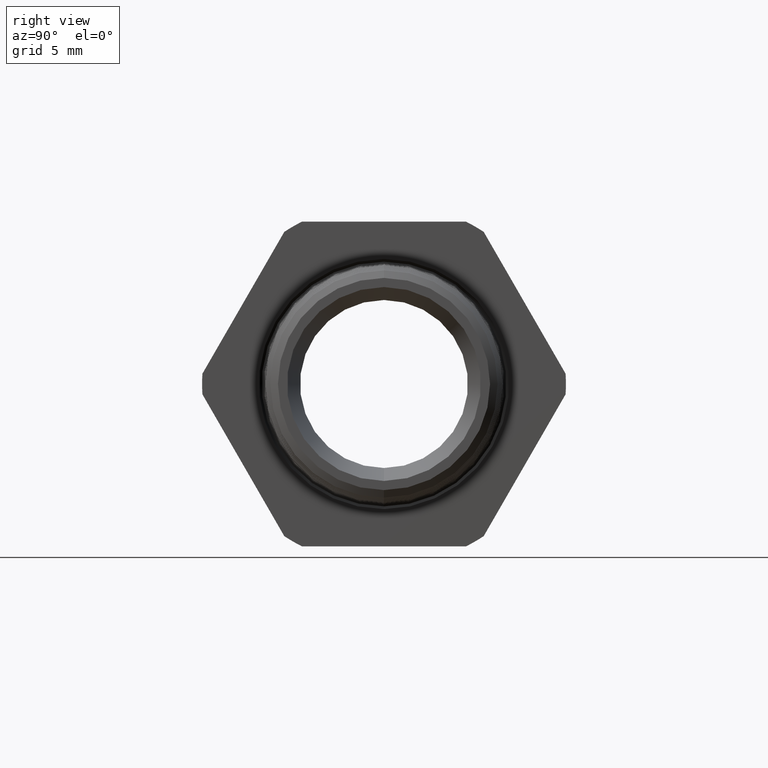
[diagram: clean part render]
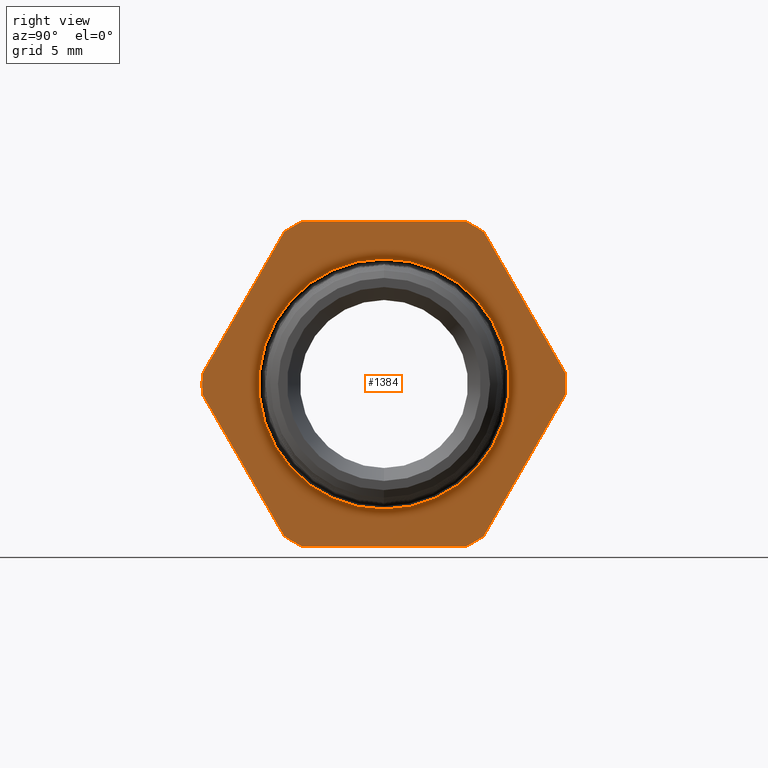
[diagram: same view with one face highlighted and labeled with its STEP entity id]
A machine part, right view. The second image highlights one B-rep face of the part: STEP entity #1384.
In plain terms, the highlighted planar face has unit normal (-1, 0, 0).
Its self-contained STEP definition (entity closure, byte-faithful):
#318 = EDGE_CURVE ( 'NONE', #3675, #3634, #1592, .T. ) ;
#1365 = ORIENTED_EDGE ( 'NONE', *, *, #1369, .T. ) ;
#1367 = EDGE_LOOP ( 'NONE', ( #1421, #1448 ) ) ;
#1368 = EDGE_CURVE ( 'NONE', #1417, #1443, #2674, .T. ) ;
#1369 = EDGE_CURVE ( 'NONE', #1445, #1375, #2670, .T. ) ;
#1370 = EDGE_CURVE ( 'NONE', #1374, #1378, #2666, .T. ) ;
#1371 = ORIENTED_EDGE ( 'NONE', *, *, #1373, .F. ) ;
#1372 = VERTEX_POINT ( 'NONE', #2662 ) ;
#1373 = EDGE_CURVE ( 'NONE', #1372, #1378, #2661, .T. ) ;
#1374 = VERTEX_POINT ( 'NONE', #2656 ) ;
#1375 = VERTEX_POINT ( 'NONE', #2655 ) ;
#1377 = ORIENTED_EDGE ( 'NONE', *, *, #3657, .T. ) ;
#1378 = VERTEX_POINT ( 'NONE', #2712 ) ;
#1381 = ORIENTED_EDGE ( 'NONE', *, *, #1370, .T. ) ;
#1382 = ORIENTED_EDGE ( 'NONE', *, *, #1434, .F. ) ;
#1383 = VERTEX_POINT ( 'NONE', #2707 ) ;
#1384 = ADVANCED_FACE ( 'NONE', ( #2706, #2705 ), #2704, .F. ) ;
#1385 = ORIENTED_EDGE ( 'NONE', *, *, #1368, .T. ) ;
#1386 = EDGE_LOOP ( 'NONE', ( #1381, #1371, #1377, #3660, #3627, #3648, #1408, #1382, #1385, #1458, #1365, #1425 ) ) ;
#1404 = EDGE_CURVE ( 'NONE', #1407, #3651, #2737, .T. ) ;
#1407 = VERTEX_POINT ( 'NONE', #2732 ) ;
#1408 = ORIENTED_EDGE ( 'NONE', *, *, #1422, .T. ) ;
#1417 = VERTEX_POINT ( 'NONE', #2774 ) ;
#1421 = ORIENTED_EDGE ( 'NONE', *, *, #1457, .F. ) ;
#1422 = EDGE_CURVE ( 'NONE', #1407, #1383, #2766, .T. ) ;
#1425 = ORIENTED_EDGE ( 'NONE', *, *, #1427, .F. ) ;
#1427 = EDGE_CURVE ( 'NONE', #1374, #1375, #2762, .T. ) ;
#1434 = EDGE_CURVE ( 'NONE', #1417, #1383, #2809, .T. ) ;
#1443 = VERTEX_POINT ( 'NONE', #2788 ) ;
#1445 = VERTEX_POINT ( 'NONE', #2787 ) ;
#1448 = ORIENTED_EDGE ( 'NONE', *, *, #318, .F. ) ;
#1455 = EDGE_CURVE ( 'NONE', #1445, #1443, #2827, .T. ) ;
#1457 = EDGE_CURVE ( 'NONE', #3634, #3675, #2822, .T. ) ;
#1458 = ORIENTED_EDGE ( 'NONE', *, *, #1455, .F. ) ;
#1588 = DIRECTION ( 'NONE',  ( 0.0000000000000000000, 0.0000000000000000000, 1.000000000000000000 ) ) ;
#1589 = DIRECTION ( 'NONE',  ( 1.000000000000000000, 0.0000000000000000000, 0.0000000000000000000 ) ) ;
#1590 = CARTESIAN_POINT ( 'NONE',  ( 0.0000000000000000000, 0.0000000000000000000, 0.0000000000000000000 ) ) ;
#1591 = AXIS2_PLACEMENT_3D ( 'NONE', #1590, #1589, #1588 ) ;
#1592 = CIRCLE ( 'NONE', #1591, 0.3349999999999998500 ) ;
#2655 = CARTESIAN_POINT ( 'NONE',  ( 0.0000000000000000000, -0.4864238764986216800, 0.02748913188977839700 ) ) ;
#2656 = CARTESIAN_POINT ( 'NONE',  ( 0.0000000000000000000, -0.4864238764986216800, -0.02748913188977887900 ) ) ;
#2657 = DIRECTION ( 'NONE',  ( 0.0000000000000000000, 0.0000000000000000000, 1.000000000000000000 ) ) ;
#2658 = DIRECTION ( 'NONE',  ( -1.000000000000000000, 0.0000000000000000000, 0.0000000000000000000 ) ) ;
#2659 = CARTESIAN_POINT ( 'NONE',  ( 0.0000000000000000000, 0.0000000000000000000, 0.0000000000000000000 ) ) ;
#2660 = AXIS2_PLACEMENT_3D ( 'NONE', #2659, #2658, #2657 ) ;
#2661 = CIRCLE ( 'NONE', #2660, 0.4872000000000000200 ) ;
#2662 = CARTESIAN_POINT ( 'NONE',  ( 0.0000000000000000000, -0.2194056517047815700, -0.4350000000000000000 ) ) ;
#2663 = DIRECTION ( 'NONE',  ( 0.0000000000000000000, 0.5000000000000003300, -0.8660254037844384900 ) ) ;
#2664 = VECTOR ( 'NONE', #2663, 39.37007874015748900 ) ;
#2665 = CARTESIAN_POINT ( 'NONE',  ( 0.0000000000000000000, -0.4864238764986216200, -0.02748913188977887900 ) ) ;
#2666 = LINE ( 'NONE', #2665, #2664 ) ;
#2667 = DIRECTION ( 'NONE',  ( 0.0000000000000000000, -0.5000000000000000000, -0.8660254037844386000 ) ) ;
#2668 = VECTOR ( 'NONE', #2667, 39.37007874015748900 ) ;
#2669 = CARTESIAN_POINT ( 'NONE',  ( 0.0000000000000000000, -0.2670182247938398500, 0.4075108681102214700 ) ) ;
#2670 = LINE ( 'NONE', #2669, #2668 ) ;
#2671 = DIRECTION ( 'NONE',  ( 0.0000000000000000000, -1.000000000000000000, 0.0000000000000000000 ) ) ;
#2672 = VECTOR ( 'NONE', #2671, 39.37007874015748100 ) ;
#2673 = CARTESIAN_POINT ( 'NONE',  ( 0.0000000000000000000, 0.2194056517047817700, 0.4350000000000000000 ) ) ;
#2674 = LINE ( 'NONE', #2673, #2672 ) ;
#2700 = DIRECTION ( 'NONE',  ( 0.0000000000000000000, 0.0000000000000000000, 1.000000000000000000 ) ) ;
#2701 = DIRECTION ( 'NONE',  ( -1.000000000000000000, 0.0000000000000000000, 0.0000000000000000000 ) ) ;
#2702 = CARTESIAN_POINT ( 'NONE',  ( 0.0000000000000000000, 0.4872000000000000200, 0.0000000000000000000 ) ) ;
#2703 = AXIS2_PLACEMENT_3D ( 'NONE', #2702, #2701, #2700 ) ;
#2704 = PLANE ( 'NONE',  #2703 ) ;
#2705 = FACE_BOUND ( 'NONE', #1367, .T. ) ;
#2706 = FACE_OUTER_BOUND ( 'NONE', #1386, .T. ) ;
#2707 = CARTESIAN_POINT ( 'NONE',  ( 0.0000000000000000000, 0.2670182247938398000, 0.4075108681102215800 ) ) ;
#2712 = CARTESIAN_POINT ( 'NONE',  ( 0.0000000000000000000, -0.2670182247938399600, -0.4075108681102215200 ) ) ;
#2732 = CARTESIAN_POINT ( 'NONE',  ( 0.0000000000000000000, 0.4864238764986217300, 0.02748913188977831700 ) ) ;
#2733 = DIRECTION ( 'NONE',  ( 0.0000000000000000000, 0.0000000000000000000, 1.000000000000000000 ) ) ;
#2734 = DIRECTION ( 'NONE',  ( -1.000000000000000000, 0.0000000000000000000, 0.0000000000000000000 ) ) ;
#2735 = CARTESIAN_POINT ( 'NONE',  ( 0.0000000000000000000, 0.0000000000000000000, 0.0000000000000000000 ) ) ;
#2736 = AXIS2_PLACEMENT_3D ( 'NONE', #2735, #2734, #2733 ) ;
#2737 = CIRCLE ( 'NONE', #2736, 0.4872000000000000200 ) ;
#2758 = DIRECTION ( 'NONE',  ( 0.0000000000000000000, 0.0000000000000000000, 1.000000000000000000 ) ) ;
#2759 = DIRECTION ( 'NONE',  ( -1.000000000000000000, 0.0000000000000000000, 0.0000000000000000000 ) ) ;
#2760 = CARTESIAN_POINT ( 'NONE',  ( 0.0000000000000000000, 0.0000000000000000000, 0.0000000000000000000 ) ) ;
#2761 = AXIS2_PLACEMENT_3D ( 'NONE', #2760, #2759, #2758 ) ;
#2762 = CIRCLE ( 'NONE', #2761, 0.4872000000000000200 ) ;
#2763 = DIRECTION ( 'NONE',  ( 0.0000000000000000000, -0.5000000000000001100, 0.8660254037844386000 ) ) ;
#2764 = VECTOR ( 'NONE', #2763, 39.37007874015748100 ) ;
#2765 = CARTESIAN_POINT ( 'NONE',  ( 0.0000000000000000000, 0.4864238764986217300, 0.02748913188977833100 ) ) ;
#2766 = LINE ( 'NONE', #2765, #2764 ) ;
#2774 = CARTESIAN_POINT ( 'NONE',  ( 0.0000000000000000000, 0.2194056517047817700, 0.4350000000000000000 ) ) ;
#2787 = CARTESIAN_POINT ( 'NONE',  ( 0.0000000000000000000, -0.2670182247938398000, 0.4075108681102215200 ) ) ;
#2788 = CARTESIAN_POINT ( 'NONE',  ( 0.0000000000000000000, -0.2194056517047817700, 0.4350000000000000000 ) ) ;
#2805 = DIRECTION ( 'NONE',  ( 0.0000000000000000000, 0.0000000000000000000, 1.000000000000000000 ) ) ;
#2806 = DIRECTION ( 'NONE',  ( -1.000000000000000000, 0.0000000000000000000, 0.0000000000000000000 ) ) ;
#2807 = CARTESIAN_POINT ( 'NONE',  ( 0.0000000000000000000, 0.0000000000000000000, 0.0000000000000000000 ) ) ;
#2808 = AXIS2_PLACEMENT_3D ( 'NONE', #2807, #2806, #2805 ) ;
#2809 = CIRCLE ( 'NONE', #2808, 0.4872000000000000200 ) ;
#2818 = DIRECTION ( 'NONE',  ( 0.0000000000000000000, 0.0000000000000000000, 1.000000000000000000 ) ) ;
#2819 = DIRECTION ( 'NONE',  ( 1.000000000000000000, 0.0000000000000000000, 0.0000000000000000000 ) ) ;
#2820 = CARTESIAN_POINT ( 'NONE',  ( 0.0000000000000000000, 0.0000000000000000000, 0.0000000000000000000 ) ) ;
#2821 = AXIS2_PLACEMENT_3D ( 'NONE', #2820, #2819, #2818 ) ;
#2822 = CIRCLE ( 'NONE', #2821, 0.3349999999999998500 ) ;
#2823 = DIRECTION ( 'NONE',  ( 0.0000000000000000000, 0.0000000000000000000, 1.000000000000000000 ) ) ;
#2824 = DIRECTION ( 'NONE',  ( -1.000000000000000000, 0.0000000000000000000, 0.0000000000000000000 ) ) ;
#2825 = CARTESIAN_POINT ( 'NONE',  ( 0.0000000000000000000, 0.0000000000000000000, 0.0000000000000000000 ) ) ;
#2826 = AXIS2_PLACEMENT_3D ( 'NONE', #2825, #2824, #2823 ) ;
#2827 = CIRCLE ( 'NONE', #2826, 0.4872000000000000200 ) ;
#3153 = CARTESIAN_POINT ( 'NONE',  ( 0.0000000000000000000, 0.2670182247938399100, -0.4075108681102214700 ) ) ;
#3189 = CARTESIAN_POINT ( 'NONE',  ( 0.0000000000000000000, 0.4864238764986216800, -0.02748913188977849700 ) ) ;
#3202 = CARTESIAN_POINT ( 'NONE',  ( 0.0000000000000000000, 0.0000000000000000000, -0.3349999999999998500 ) ) ;
#3220 = DIRECTION ( 'NONE',  ( 0.0000000000000000000, 0.0000000000000000000, 1.000000000000000000 ) ) ;
#3221 = DIRECTION ( 'NONE',  ( -1.000000000000000000, 0.0000000000000000000, 0.0000000000000000000 ) ) ;
#3222 = CARTESIAN_POINT ( 'NONE',  ( 0.0000000000000000000, 0.0000000000000000000, 0.0000000000000000000 ) ) ;
#3223 = AXIS2_PLACEMENT_3D ( 'NONE', #3222, #3221, #3220 ) ;
#3224 = CIRCLE ( 'NONE', #3223, 0.4872000000000000200 ) ;
#3230 = CARTESIAN_POINT ( 'NONE',  ( 0.0000000000000000000, 0.2194056517047814900, -0.4350000000000001600 ) ) ;
#3232 = DIRECTION ( 'NONE',  ( 0.0000000000000000000, 1.000000000000000000, 0.0000000000000000000 ) ) ;
#3233 = VECTOR ( 'NONE', #3232, 39.37007874015748100 ) ;
#3234 = CARTESIAN_POINT ( 'NONE',  ( 0.0000000000000000000, -0.2194056517047814900, -0.4350000000000001600 ) ) ;
#3235 = LINE ( 'NONE', #3234, #3233 ) ;
#3242 = DIRECTION ( 'NONE',  ( 0.0000000000000000000, 0.5000000000000001100, 0.8660254037844386000 ) ) ;
#3243 = VECTOR ( 'NONE', #3242, 39.37007874015748900 ) ;
#3244 = CARTESIAN_POINT ( 'NONE',  ( 0.0000000000000000000, 0.2670182247938399100, -0.4075108681102214700 ) ) ;
#3245 = LINE ( 'NONE', #3244, #3243 ) ;
#3253 = CARTESIAN_POINT ( 'NONE',  ( 0.0000000000000000000, 4.102566777143631600E-017, 0.3349999999999998500 ) ) ;
#3626 = VERTEX_POINT ( 'NONE', #3153 ) ;
#3627 = ORIENTED_EDGE ( 'NONE', *, *, #3653, .T. ) ;
#3634 = VERTEX_POINT ( 'NONE', #3202 ) ;
#3648 = ORIENTED_EDGE ( 'NONE', *, *, #1404, .F. ) ;
#3651 = VERTEX_POINT ( 'NONE', #3189 ) ;
#3653 = EDGE_CURVE ( 'NONE', #3626, #3651, #3245, .T. ) ;
#3657 = EDGE_CURVE ( 'NONE', #1372, #3661, #3235, .T. ) ;
#3660 = ORIENTED_EDGE ( 'NONE', *, *, #3663, .F. ) ;
#3661 = VERTEX_POINT ( 'NONE', #3230 ) ;
#3663 = EDGE_CURVE ( 'NONE', #3626, #3661, #3224, .T. ) ;
#3675 = VERTEX_POINT ( 'NONE', #3253 ) ;